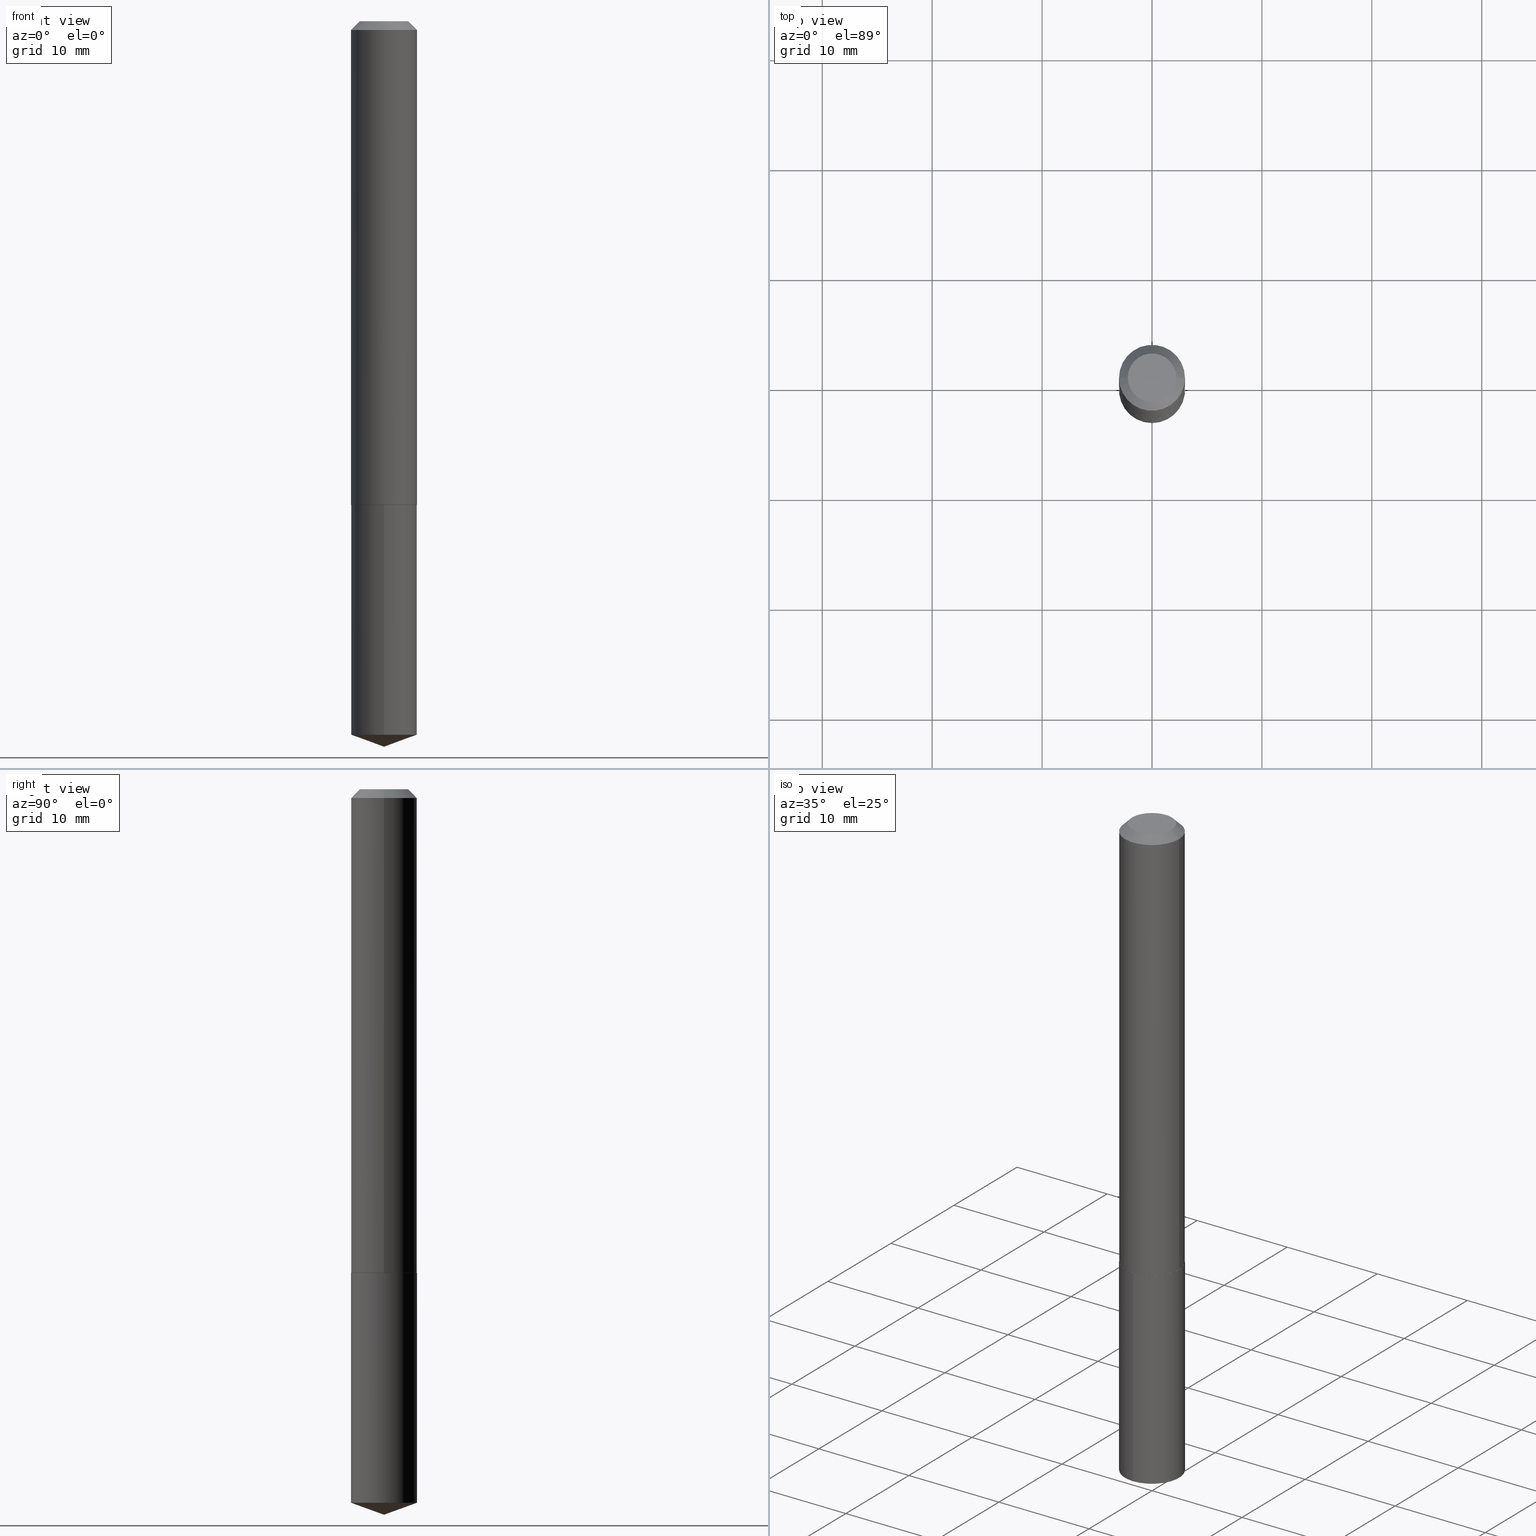
[diagram: canonical four-view strip — front | top / right | iso, engineering-drawing reading convention]
A machine part, canonical four-view strip (front | top / right | iso — engineering-drawing reading convention). The complete STEP part file that produces these views, byte-faithful:
ISO-10303-21;
HEADER;
FILE_DESCRIPTION (( 'STEP AP203' ),
    '1' );
FILE_NAME ('66045.STEP',
    '2024-04-23T12:50:18',
    ( '' ),
    ( '' ),
    'SwSTEP 2.0',
    'SolidWorks 2023',
    '' );
FILE_SCHEMA (( 'CONFIG_CONTROL_DESIGN' ));
ENDSEC;

DATA;
#1 = COORDINATED_UNIVERSAL_TIME_OFFSET ( 5, 0, .BEHIND. ) ;
#2 = CIRCLE ( 'NONE', #282, 0.08684999999999999665 ) ;
#3 = AXIS2_PLACEMENT_3D ( 'NONE', #376, #349, #219 ) ;
#4 = CARTESIAN_POINT ( 'NONE',  ( -0.1176000000000002738, -5.209696490716105911E-15, -1.732199999999999518 ) ) ;
#5 = ADVANCED_FACE ( 'NONE', ( #130 ), #139, .T. ) ;
#6 = AXIS2_PLACEMENT_3D ( 'NONE', #304, #390, #24 ) ;
#7 = DIRECTION ( 'NONE',  ( -2.443006926696286380E-29, 3.495006890392658016E-15, 1.000000000000000000 ) ) ;
#8 = ORIENTED_EDGE ( 'NONE', *, *, #19, .F. ) ;
#9 = ORIENTED_EDGE ( 'NONE', *, *, #385, .T. ) ;
#10 = DIRECTION ( 'NONE',  ( 1.000000000000000000, -6.982962677686267499E-15, 0.000000000000000000 ) ) ;
#11 = PRODUCT_DEFINITION_SHAPE ( 'NONE', 'NONE',  #43 ) ;
#12 = VERTEX_POINT ( 'NONE', #176 ) ;
#13 = LINE ( 'NONE', #228, #77 ) ;
#14 = EDGE_LOOP ( 'NONE', ( #9, #120, #311, #183 ) ) ;
#15 = CARTESIAN_POINT ( 'NONE',  ( 7.642090019328601786E-31, -1.091087918388490144E-16, -0.03125000000000020123 ) ) ;
#16 = FACE_OUTER_BOUND ( 'NONE', #122, .T. ) ;
#17 = CIRCLE ( 'NONE', #243, 0.1180999999999999966 ) ;
#18 = LOCAL_TIME ( 8, 50, 18.00000000000000000, #1 ) ;
#19 = EDGE_CURVE ( 'NONE', #129, #320, #307, .T. ) ;
#20 = DIRECTION ( 'NONE',  ( 2.445468806185136597E-29, -3.491481338843145583E-15, -1.000000000000000000 ) ) ;
#21 = CARTESIAN_POINT ( 'NONE',  ( 4.234818331670800246E-29, -6.046198234474674485E-15, -1.731699999999999795 ) ) ;
#22 = CYLINDRICAL_SURFACE ( 'NONE', #3, 0.1181000000000001077 ) ;
#23 = VECTOR ( 'NONE', #343, 39.37007874015748143 ) ;
#24 = DIRECTION ( 'NONE',  ( 1.000000000000000000, -6.982962677686267499E-15, 0.000000000000000000 ) ) ;
#25 = AXIS2_PLACEMENT_3D ( 'NONE', #142, #236, #79 ) ;
#26 = MANIFOLD_SOLID_BREP ( 'Body-Move/Copy2[1]', #53 ) ;
#27 = PERSON_AND_ORGANIZATION ( #281, #263 ) ;
#28 = ADVANCED_FACE ( 'NONE', ( #340 ), #273, .T. ) ;
#29 = AXIS2_PLACEMENT_3D ( 'NONE', #305, #7, #118 ) ;
#30 = DATE_AND_TIME ( #245, #145 ) ;
#31 = CARTESIAN_POINT ( 'NONE',  ( 6.347909198327629019E-29, -9.081425903996282257E-15, -2.598399999999999821 ) ) ;
#32 = CC_DESIGN_PERSON_AND_ORGANIZATION_ASSIGNMENT ( #60, #369, ( #140 ) ) ;
#33 = APPROVAL_STATUS ( 'not_yet_approved' ) ;
#34 = ORIENTED_EDGE ( 'NONE', *, *, #239, .F. ) ;
#35 = SHAPE_DEFINITION_REPRESENTATION ( #11, #205 ) ;
#36 = DIRECTION ( 'NONE',  ( -0.7071067811865454633, 2.468850131082235367E-15, -0.7071067811865495711 ) ) ;
#37 = DIRECTION ( 'NONE',  ( -2.443006926696286380E-29, 3.495006890392658410E-15, 1.000000000000000000 ) ) ;
#38 = FACE_OUTER_BOUND ( 'NONE', #127, .T. ) ;
#39 = VERTEX_POINT ( 'NONE', #180 ) ;
#40 = DIRECTION ( 'NONE',  ( -2.443006926696286380E-29, 3.495006890392658016E-15, 1.000000000000000000 ) ) ;
#41 = CARTESIAN_POINT ( 'NONE',  ( 0.1180999999999999966, -9.193336053756670343E-16, -0.03125000000000020123 ) ) ;
#42 = ORIENTED_EDGE ( 'NONE', *, *, #204, .T. ) ;
#43 = PRODUCT_DEFINITION ( 'UNKNOWN', '', #140, #217 ) ;
#44 = DIRECTION ( 'NONE',  ( -6.982962677686265922E-15, -1.000000000000000000, 4.626330217890369336E-15 ) ) ;
#45 = VERTEX_POINT ( 'NONE', #31 ) ;
#46 = ORIENTED_EDGE ( 'NONE', *, *, #57, .F. ) ;
#47 = DIRECTION ( 'NONE',  ( -6.982962677686265922E-15, -1.000000000000000000, 4.626330217890369336E-15 ) ) ;
#48 = CARTESIAN_POINT ( 'NONE',  ( 6.356512922323793601E-29, -9.069211983208151502E-15, -2.598399999999999821 ) ) ;
#49 = AXIS2_PLACEMENT_3D ( 'NONE', #155, #319, #10 ) ;
#50 = DIRECTION ( 'NONE',  ( -6.982962677686265922E-15, -1.000000000000000000, 4.626330217890369336E-15 ) ) ;
#51 = DIRECTION ( 'NONE',  ( -2.445468806185136597E-29, 3.491481338843145583E-15, 1.000000000000000000 ) ) ;
#52 = APPROVAL_STATUS ( 'not_yet_approved' ) ;
#53 = CLOSED_SHELL ( 'NONE', ( #253, #56, #166, #28, #247 ) ) ;
#54 = DIRECTION ( 'NONE',  ( -2.445468806185136597E-29, 3.491481338843145583E-15, 1.000000000000000000 ) ) ;
#55 = APPROVAL_ROLE ( '' ) ;
#56 = ADVANCED_FACE ( 'NONE', ( #248 ), #261, .T. ) ;
#57 = EDGE_CURVE ( 'NONE', #39, #12, #64, .T. ) ;
#58 = DATE_TIME_ROLE ( 'creation_date' ) ;
#59 = AXIS2_PLACEMENT_3D ( 'NONE', #383, #40, #321 ) ;
#60 = PERSON_AND_ORGANIZATION ( #281, #263 ) ;
#61 = APPROVAL_ROLE ( '' ) ;
#62 = ADVANCED_FACE ( 'NONE', ( #38 ), #213, .T. ) ;
#63 = LINE ( 'NONE', #41, #23 ) ;
#64 = CIRCLE ( 'NONE', #267, 0.1181000000000002187 ) ;
#65 = EDGE_CURVE ( 'NONE', #87, #12, #249, .T. ) ;
#66 = EDGE_LOOP ( 'NONE', ( #119, #347, #34, #312 ) ) ;
#67 = EDGE_LOOP ( 'NONE', ( #8, #94, #212, #258 ) ) ;
#68 = DIRECTION ( 'NONE',  ( -2.443006926696286380E-29, 3.495006890392658016E-15, 1.000000000000000000 ) ) ;
#69 = VECTOR ( 'NONE', #36, 39.37007874015748143 ) ;
#70 = AXIS2_PLACEMENT_3D ( 'NONE', #199, #54, #170 ) ;
#71 = ORIENTED_EDGE ( 'NONE', *, *, #231, .T. ) ;
#72 = LINE ( 'NONE', #117, #99 ) ;
#73 = DIRECTION ( 'NONE',  ( -2.443006926696286380E-29, 3.495006890392658016E-15, 1.000000000000000000 ) ) ;
#74 = ORIENTED_EDGE ( 'NONE', *, *, #175, .T. ) ;
#75 = DIRECTION ( 'NONE',  ( -2.445468806185136597E-29, 3.491481338843145583E-15, 1.000000000000000000 ) ) ;
#76 = DIRECTION ( 'NONE',  ( 1.000000000000000000, -6.982962677686267499E-15, 0.000000000000000000 ) ) ;
#77 = VECTOR ( 'NONE', #288, 39.37007874015748143 ) ;
#78 = PLANE ( 'NONE',  #316 ) ;
#79 = DIRECTION ( 'NONE',  ( 1.000000000000000000, 0.000000000000000000, 0.000000000000000000 ) ) ;
#80 = CLOSED_SHELL ( 'NONE', ( #5, #337, #327, #109, #62, #278, #279, #301 ) ) ;
#81 = APPROVAL_DATE_TIME ( #388, #208 ) ;
#82 = CC_DESIGN_APPROVAL ( #366, ( #140 ) ) ;
#83 = CARTESIAN_POINT ( 'NONE',  ( 0.1180999999999999966, -9.337966840735971660E-16, -0.03125000000000020123 ) ) ;
#84 = CALENDAR_DATE ( 2024, 23, 4 ) ;
#85 = VECTOR ( 'NONE', #138, 39.37007874015748143 ) ;
#86 = CONICAL_SURFACE ( 'NONE', #201, 0.1180999999999999966, 0.7853981633974453924 ) ;
#87 = VERTEX_POINT ( 'NONE', #308 ) ;
#88 = AXIS2_PLACEMENT_3D ( 'NONE', #15, #259, #344 ) ;
#89 = EDGE_CURVE ( 'NONE', #379, #374, #169, .T. ) ;
#90 = ORIENTED_EDGE ( 'NONE', *, *, #57, .T. ) ;
#91 = ORIENTED_EDGE ( 'NONE', *, *, #121, .T. ) ;
#92 = DIRECTION ( 'NONE',  ( -2.438088387897960049E-29, 3.491481338843145188E-15, 1.000000000000000000 ) ) ;
#93 = CARTESIAN_POINT ( 'NONE',  ( 0.1181000000000002187, -6.870886126709424325E-15, -1.731699999999999795 ) ) ;
#94 = ORIENTED_EDGE ( 'NONE', *, *, #332, .T. ) ;
#95 = CARTESIAN_POINT ( 'NONE',  ( 4.236041066073892487E-29, -6.047943975144095988E-15, -1.732199999999999518 ) ) ;
#96 = DIRECTION ( 'NONE',  ( 0.7071067811865837660, -2.468850131082636503E-15, 0.7071067811865112684 ) ) ;
#97 = ORIENTED_EDGE ( 'NONE', *, *, #136, .F. ) ;
#98 = DIRECTION ( 'NONE',  ( 2.438088387897960049E-29, -3.491481338843145188E-15, -1.000000000000000000 ) ) ;
#99 = VECTOR ( 'NONE', #188, 39.37007874015748143 ) ;
#100 = AXIS2_PLACEMENT_3D ( 'NONE', #195, #324, #50 ) ;
#101 = ORIENTED_EDGE ( 'NONE', *, *, #211, .F. ) ;
#102 = ORIENTED_EDGE ( 'NONE', *, *, #108, .F. ) ;
#103 = VERTEX_POINT ( 'NONE', #354 ) ;
#104 = CYLINDRICAL_SURFACE ( 'NONE', #132, 0.1181000000000001077 ) ;
#105 = CARTESIAN_POINT ( 'NONE',  ( 6.247161294993890349E-29, -8.925086475508884590E-15, -2.555415115333162124 ) ) ;
#106 = FACE_OUTER_BOUND ( 'NONE', #125, .T. ) ;
#107 = CARTESIAN_POINT ( 'NONE',  ( 4.236041066073892487E-29, -6.047943975144095988E-15, -1.732199999999999518 ) ) ;
#108 = EDGE_CURVE ( 'NONE', #45, #129, #384, .T. ) ;
#109 = ADVANCED_FACE ( 'NONE', ( #106 ), #230, .F. ) ;
#110 = APPROVAL_DATE_TIME ( #137, #366 ) ;
#111 = CC_DESIGN_PERSON_AND_ORGANIZATION_ASSIGNMENT ( #277, #339, ( #133 ) ) ;
#112 = DIRECTION ( 'NONE',  ( -2.445468806185136877E-29, 3.491481338843145188E-15, 1.000000000000000000 ) ) ;
#113 = AXIS2_PLACEMENT_3D ( 'NONE', #246, #365, #210 ) ;
#114 = LENGTH_MEASURE_WITH_UNIT ( LENGTH_MEASURE( 0.02539999999999999897 ), #295 );
#115 = APPROVAL_ROLE ( '' ) ;
#116 = AXIS2_PLACEMENT_3D ( 'NONE', #291, #192, #229 ) ;
#117 = CARTESIAN_POINT ( 'NONE',  ( -8.246878922347056641E-16, -0.1181000000000060474, -1.732199999999999074 ) ) ;
#118 = DIRECTION ( 'NONE',  ( -6.982962677686265922E-15, -1.000000000000000000, 4.626330217890369336E-15 ) ) ;
#119 = ORIENTED_EDGE ( 'NONE', *, *, #211, .T. ) ;
#120 = ORIENTED_EDGE ( 'NONE', *, *, #356, .T. ) ;
#121 = EDGE_CURVE ( 'NONE', #372, #379, #63, .T. ) ;
#122 = EDGE_LOOP ( 'NONE', ( #283, #90, #74, #342 ) ) ;
#123 = CC_DESIGN_APPROVAL ( #298, ( #133 ) ) ;
#124 = ORIENTED_EDGE ( 'NONE', *, *, #371, .T. ) ;
#125 = EDGE_LOOP ( 'NONE', ( #352, #341 ) ) ;
#126 = ORIENTED_EDGE ( 'NONE', *, *, #204, .F. ) ;
#127 = EDGE_LOOP ( 'NONE', ( #97, #160, #191, #46 ) ) ;
#128 = CARTESIAN_POINT ( 'NONE',  ( 0.000000000000000000, 0.000000000000000000, 0.000000000000000000 ) ) ;
#129 = VERTEX_POINT ( 'NONE', #350 ) ;
#130 = FACE_OUTER_BOUND ( 'NONE', #218, .T. ) ;
#131 = CYLINDRICAL_SURFACE ( 'NONE', #59, 0.1180999999999999966 ) ;
#132 = AXIS2_PLACEMENT_3D ( 'NONE', #128, #161, #135 ) ;
#133 = SECURITY_CLASSIFICATION ( '', '', #336 ) ;
#134 = CARTESIAN_POINT ( 'NONE',  ( 1.768450389859457174E-46, -2.524878468802162243E-32, -7.231539348965118234E-18 ) ) ;
#135 = DIRECTION ( 'NONE',  ( 1.000000000000000000, -6.982962677686266711E-15, 4.876176775795935793E-29 ) ) ;
#136 = EDGE_CURVE ( 'NONE', #368, #39, #375, .T. ) ;
#137 = DATE_AND_TIME ( #299, #18 ) ;
#138 = DIRECTION ( 'NONE',  ( -2.445468806185136877E-29, 3.491481338843145188E-15, 1.000000000000000000 ) ) ;
#139 = CONICAL_SURFACE ( 'NONE', #88, 0.1180999999999999966, 0.7853981633974453924 ) ;
#140 = PRODUCT_DEFINITION_FORMATION_WITH_SPECIFIED_SOURCE ( 'ANY', '', #284, .NOT_KNOWN. ) ;
#141 =( CONVERSION_BASED_UNIT ( 'INCH', #114 ) LENGTH_UNIT ( ) NAMED_UNIT ( #318 ) );
#142 = CARTESIAN_POINT ( 'NONE',  ( 0.000000000000000000, 0.000000000000000000, 0.000000000000000000 ) ) ;
#143 = PERSON_AND_ORGANIZATION ( #281, #263 ) ;
#144 = AXIS2_PLACEMENT_3D ( 'NONE', #153, #92, #216 ) ;
#145 = LOCAL_TIME ( 8, 50, 18.00000000000000000, #148 ) ;
#146 = COORDINATED_UNIVERSAL_TIME_OFFSET ( 5, 0, .BEHIND. ) ;
#147 = UNCERTAINTY_MEASURE_WITH_UNIT (LENGTH_MEASURE( 1.000000000000000082E-05 ), #141, 'distance_accuracy_value', 'NONE');
#148 = COORDINATED_UNIVERSAL_TIME_OFFSET ( 5, 0, .BEHIND. ) ;
#149 = DATE_TIME_ROLE ( 'classification_date' ) ;
#150 = VECTOR ( 'NONE', #96, 39.37007874015748143 ) ;
#151 = DIRECTION ( 'NONE',  ( 1.000000000000000000, -6.982962677686267499E-15, 0.000000000000000000 ) ) ;
#152 = CIRCLE ( 'NONE', #116, 0.1180999999999999966 ) ;
#153 = CARTESIAN_POINT ( 'NONE',  ( 4.236041066073892487E-29, -6.047943975144095988E-15, -1.732199999999999518 ) ) ;
#154 = ORIENTED_EDGE ( 'NONE', *, *, #269, .F. ) ;
#155 = CARTESIAN_POINT ( 'NONE',  ( 4.234818331670800246E-29, -6.046198234474674485E-15, -1.731699999999999795 ) ) ;
#156 = EDGE_LOOP ( 'NONE', ( #250, #71 ) ) ;
#157 = ORIENTED_EDGE ( 'NONE', *, *, #108, .T. ) ;
#158 = DIRECTION ( 'NONE',  ( 1.000000000000000000, -6.982962677686266711E-15, 4.875959881687004012E-29 ) ) ;
#159 = EDGE_LOOP ( 'NONE', ( #378, #182 ) ) ;
#160 = ORIENTED_EDGE ( 'NONE', *, *, #194, .T. ) ;
#161 = DIRECTION ( 'NONE',  ( -2.445468806185136597E-29, 3.491481338843145583E-15, 1.000000000000000000 ) ) ;
#162 = DIRECTION ( 'NONE',  ( 6.982962677686265922E-15, 1.000000000000000000, -3.495006890392658410E-15 ) ) ;
#163 = CIRCLE ( 'NONE', #70, 0.1176000000000002738 ) ;
#164 = EDGE_CURVE ( 'NONE', #103, #274, #72, .T. ) ;
#165 = DIRECTION ( 'NONE',  ( 1.000000000000000000, -6.982962677686269077E-15, 0.000000000000000000 ) ) ;
#166 = ADVANCED_FACE ( 'NONE', ( #382 ), #302, .T. ) ;
#167 = FACE_OUTER_BOUND ( 'NONE', #14, .T. ) ;
#168 = PRODUCT_RELATED_PRODUCT_CATEGORY ( 'detail', '', ( #284 ) ) ;
#169 = CIRCLE ( 'NONE', #113, 0.1180999999999999966 ) ;
#170 = DIRECTION ( 'NONE',  ( 1.000000000000000000, -6.982962677686269077E-15, 0.000000000000000000 ) ) ;
#171 = COORDINATED_UNIVERSAL_TIME_OFFSET ( 5, 0, .BEHIND. ) ;
#172 = PERSON_AND_ORGANIZATION ( #281, #263 ) ;
#173 = AXIS2_PLACEMENT_3D ( 'NONE', #105, #323, #47 ) ;
#174 = PERSON_AND_ORGANIZATION ( #281, #263 ) ;
#175 = EDGE_CURVE ( 'NONE', #12, #379, #329, .T. ) ;
#176 = CARTESIAN_POINT ( 'NONE',  ( 0.1181000000000002187, -6.870886126709424325E-15, -1.731699999999999795 ) ) ;
#177 = APPROVAL_DATE_TIME ( #271, #298 ) ;
#178 = CIRCLE ( 'NONE', #185, 0.1180999999999999966 ) ;
#179 = CIRCLE ( 'NONE', #6, 0.1181000000000002187 ) ;
#180 = CARTESIAN_POINT ( 'NONE',  ( -0.1181000000000002187, -5.207047263541994710E-15, -1.731699999999999795 ) ) ;
#181 = COORDINATED_UNIVERSAL_TIME_OFFSET ( 5, 0, .BEHIND. ) ;
#182 = ORIENTED_EDGE ( 'NONE', *, *, #290, .T. ) ;
#183 = ORIENTED_EDGE ( 'NONE', *, *, #175, .F. ) ;
#184 = CARTESIAN_POINT ( 'NONE',  ( 3.536900779718914348E-46, -5.049756937604324485E-32, -1.446307869793023647E-17 ) ) ;
#185 = AXIS2_PLACEMENT_3D ( 'NONE', #262, #68, #44 ) ;
#186 = CC_DESIGN_SECURITY_CLASSIFICATION ( #133, ( #140 ) ) ;
#187 = ORIENTED_EDGE ( 'NONE', *, *, #89, .T. ) ;
#188 = DIRECTION ( 'NONE',  ( -2.443006926696286380E-29, 3.495006890392658410E-15, 1.000000000000000000 ) ) ;
#189 = PLANE ( 'NONE',  #387 ) ;
#190 = ORIENTED_EDGE ( 'NONE', *, *, #290, .F. ) ;
#191 = ORIENTED_EDGE ( 'NONE', *, *, #65, .T. ) ;
#192 = DIRECTION ( 'NONE',  ( -2.445468806185136597E-29, 3.491481338843145583E-15, 1.000000000000000000 ) ) ;
#193 = EDGE_CURVE ( 'NONE', #221, #374, #326, .T. ) ;
#194 = EDGE_CURVE ( 'NONE', #368, #87, #251, .T. ) ;
#195 = CARTESIAN_POINT ( 'NONE',  ( 6.247161294993890349E-29, -8.925086475508884590E-15, -2.555415115333162124 ) ) ;
#196 = LOCAL_TIME ( 8, 50, 18.00000000000000000, #181 ) ;
#197 = DIRECTION ( 'NONE',  ( -6.982962677686265922E-15, -1.000000000000000000, 4.626330217890369336E-15 ) ) ;
#198 = PERSON_AND_ORGANIZATION_ROLE ( 'creator' ) ;
#199 = CARTESIAN_POINT ( 'NONE',  ( 4.236041066073892487E-29, -6.047943975144095988E-15, -1.732199999999999518 ) ) ;
#200 = CIRCLE ( 'NONE', #173, 0.1180999999999999966 ) ;
#201 = AXIS2_PLACEMENT_3D ( 'NONE', #255, #20, #357 ) ;
#202 = PERSON_AND_ORGANIZATION_ROLE ( 'creator' ) ;
#203 = APPLICATION_PROTOCOL_DEFINITION ( 'international standard', 'config_control_design', 1994, #256 ) ;
#204 = EDGE_CURVE ( 'NONE', #45, #103, #13, .T. ) ;
#205 = ADVANCED_BREP_SHAPE_REPRESENTATION ( '66045', ( #26, #294, #25 ), #348 ) ;
#206 = AXIS2_PLACEMENT_3D ( 'NONE', #235, #335, #207 ) ;
#207 = DIRECTION ( 'NONE',  ( -6.982962677686265922E-15, -1.000000000000000000, 3.475157955500679982E-15 ) ) ;
#208 = APPROVAL ( #361, 'UNSPECIFIED' ) ;
#209 = CARTESIAN_POINT ( 'NONE',  ( 4.234818331670800246E-29, -6.046198234474674485E-15, -1.731699999999999795 ) ) ;
#210 = DIRECTION ( 'NONE',  ( 1.000000000000000000, -6.982962677686266711E-15, 0.000000000000000000 ) ) ;
#211 = EDGE_CURVE ( 'NONE', #103, #129, #200, .T. ) ;
#212 = ORIENTED_EDGE ( 'NONE', *, *, #164, .T. ) ;
#213 = CONICAL_SURFACE ( 'NONE', #49, 0.1181000000000002187, 0.7853981633974995713 ) ;
#214 = APPROVAL_PERSON_ORGANIZATION ( #143, #208, #115 ) ;
#215 = DIRECTION ( 'NONE',  ( -6.982962677686265922E-15, -1.000000000000000000, 3.475157955500679982E-15 ) ) ;
#216 = DIRECTION ( 'NONE',  ( 1.000000000000000000, -6.982962677686265922E-15, 4.876176775795935793E-29 ) ) ;
#217 = DESIGN_CONTEXT ( 'detailed design', #256, 'design' ) ;
#218 = EDGE_LOOP ( 'NONE', ( #190, #91, #187, #338 ) ) ;
#219 = DIRECTION ( 'NONE',  ( 1.000000000000000000, -6.982962677686266711E-15, 4.876176775795935793E-29 ) ) ;
#220 = DIRECTION ( 'NONE',  ( 6.676917655467978384E-15, 0.9396926207859110924, 0.3420201433256611079 ) ) ;
#221 = VERTEX_POINT ( 'NONE', #287 ) ;
#222 = DIRECTION ( 'NONE',  ( -1.000000000000000000, 6.982962677686265922E-15, -4.876176775795935793E-29 ) ) ;
#223 = VECTOR ( 'NONE', #315, 39.37007874015748143 ) ;
#224 = APPROVAL_PERSON_ORGANIZATION ( #275, #298, #61 ) ;
#225 = CC_DESIGN_DATE_AND_TIME_ASSIGNMENT ( #331, #58, ( #43 ) ) ;
#226 = ORIENTED_EDGE ( 'NONE', *, *, #193, .T. ) ;
#227 = ORIENTED_EDGE ( 'NONE', *, *, #385, .F. ) ;
#228 = CARTESIAN_POINT ( 'NONE',  ( 6.347909198327629019E-29, -9.081425903996282257E-15, -2.598399999999999821 ) ) ;
#229 = DIRECTION ( 'NONE',  ( 1.000000000000000000, -6.982962677686266711E-15, 0.000000000000000000 ) ) ;
#230 = PLANE ( 'NONE',  #144 ) ;
#231 = EDGE_CURVE ( 'NONE', #320, #274, #178, .T. ) ;
#232 = DIRECTION ( 'NONE',  ( -2.445468806185136597E-29, 3.491481338843145583E-15, 1.000000000000000000 ) ) ;
#233 = AXIS2_PLACEMENT_3D ( 'NONE', #309, #276, #215 ) ;
#234 = PERSON_AND_ORGANIZATION ( #281, #263 ) ;
#235 = CARTESIAN_POINT ( 'NONE',  ( -8.982920140080471166E-28, 1.285233775285496638E-13, 36.77167874015748339 ) ) ;
#236 = DIRECTION ( 'NONE',  ( 0.000000000000000000, 0.000000000000000000, 1.000000000000000000 ) ) ;
#237 = AXIS2_PLACEMENT_3D ( 'NONE', #21, #51, #76 ) ;
#238 = CARTESIAN_POINT ( 'NONE',  ( -0.1181000000000001077, 8.391509709326790846E-16, -5.809262341591049389E-30 ) ) ;
#239 = EDGE_CURVE ( 'NONE', #274, #320, #17, .T. ) ;
#240 = CALENDAR_DATE ( 2024, 23, 4 ) ;
#241 = APPLICATION_CONTEXT ( 'configuration controlled 3d designs of mechanical parts and assemblies' ) ;
#242 = CC_DESIGN_PERSON_AND_ORGANIZATION_ASSIGNMENT ( #234, #198, ( #140 ) ) ;
#243 = AXIS2_PLACEMENT_3D ( 'NONE', #95, #73, #197 ) ;
#244 = CC_DESIGN_APPROVAL ( #208, ( #43 ) ) ;
#245 = CALENDAR_DATE ( 2024, 23, 4 ) ;
#246 = CARTESIAN_POINT ( 'NONE',  ( 7.642090019328601786E-31, -1.091087918388490144E-16, -0.03125000000000020123 ) ) ;
#247 = ADVANCED_FACE ( 'NONE', ( #292 ), #189, .F. ) ;
#248 = FACE_OUTER_BOUND ( 'NONE', #286, .T. ) ;
#249 = LINE ( 'NONE', #93, #150 ) ;
#250 = ORIENTED_EDGE ( 'NONE', *, *, #239, .T. ) ;
#251 = CIRCLE ( 'NONE', #314, 0.1176000000000002738 ) ;
#252 = DIRECTION ( 'NONE',  ( -2.445468806185136597E-29, 3.491481338843145583E-15, 1.000000000000000000 ) ) ;
#253 = ADVANCED_FACE ( 'NONE', ( #317 ), #131, .T. ) ;
#254 = ORIENTED_EDGE ( 'NONE', *, *, #332, .F. ) ;
#255 = CARTESIAN_POINT ( 'NONE',  ( 7.642090019328601786E-31, -1.091087918388490144E-16, -0.03125000000000020123 ) ) ;
#256 = APPLICATION_CONTEXT ( 'configuration controlled 3d designs of mechanical parts and assemblies' ) ;
#257 = CARTESIAN_POINT ( 'NONE',  ( 3.536900779718914348E-46, -5.049756937604324485E-32, -1.446307869793023647E-17 ) ) ;
#258 = ORIENTED_EDGE ( 'NONE', *, *, #231, .F. ) ;
#259 = DIRECTION ( 'NONE',  ( 2.445468806185136597E-29, -3.491481338843145583E-15, -1.000000000000000000 ) ) ;
#260 = ORIENTED_EDGE ( 'NONE', *, *, #121, .F. ) ;
#261 = CONICAL_SURFACE ( 'NONE', #233, 108.1684023407347155, 1.221730476396035270 ) ;
#262 = CARTESIAN_POINT ( 'NONE',  ( 4.236041066073892487E-29, -6.047943975144095988E-15, -1.732199999999999518 ) ) ;
#263 = ORGANIZATION ( 'UNSPECIFIED', 'UNSPECIFIED', '' ) ;
#264 = DIRECTION ( 'NONE',  ( 1.000000000000000000, -6.982962677686266711E-15, 4.875959881687004012E-29 ) ) ;
#265 = DIRECTION ( 'NONE',  ( -2.445468806185136597E-29, 3.491481338843145583E-15, 1.000000000000000000 ) ) ;
#266 = APPLICATION_PROTOCOL_DEFINITION ( 'international standard', 'config_control_design', 1994, #241 ) ;
#267 = AXIS2_PLACEMENT_3D ( 'NONE', #209, #252, #151 ) ;
#268 = CARTESIAN_POINT ( 'NONE',  ( 0.08684999999999999665, -7.575839282410621061E-16, -1.446307869792546941E-17 ) ) ;
#269 = EDGE_CURVE ( 'NONE', #221, #372, #2, .T. ) ;
#270 = VECTOR ( 'NONE', #112, 39.37007874015748143 ) ;
#271 = DATE_AND_TIME ( #84, #196 ) ;
#272 = ORIENTED_EDGE ( 'NONE', *, *, #310, .T. ) ;
#273 = CYLINDRICAL_SURFACE ( 'NONE', #29, 0.1180999999999999966 ) ;
#274 = VERTEX_POINT ( 'NONE', #285 ) ;
#275 = PERSON_AND_ORGANIZATION ( #281, #263 ) ;
#276 = DIRECTION ( 'NONE',  ( -2.443006926696286380E-29, 3.495006890392658016E-15, 1.000000000000000000 ) ) ;
#277 = PERSON_AND_ORGANIZATION ( #281, #263 ) ;
#278 = ADVANCED_FACE ( 'NONE', ( #16 ), #104, .T. ) ;
#279 = ADVANCED_FACE ( 'NONE', ( #353 ), #86, .T. ) ;
#280 = ORIENTED_EDGE ( 'NONE', *, *, #65, .F. ) ;
#281 = PERSON ( 'UNSPECIFIED', 'UNSPECIFIED', 'UNSPECIFIED', ('UNSPECIFIED'), ('UNSPECIFIED'), ('UNSPECIFIED') ) ;
#282 = AXIS2_PLACEMENT_3D ( 'NONE', #184, #232, #158 ) ;
#283 = ORIENTED_EDGE ( 'NONE', *, *, #356, .F. ) ;
#284 = PRODUCT ( '66045', '66045', '', ( #358 ) ) ;
#285 = CARTESIAN_POINT ( 'NONE',  ( -8.246878922347056641E-16, -0.1181000000000060474, -1.732199999999999074 ) ) ;
#286 = EDGE_LOOP ( 'NONE', ( #126, #157, #101 ) ) ;
#287 = CARTESIAN_POINT ( 'NONE',  ( -0.08684999999999999665, 6.610247044764755977E-16, -1.446307869793467073E-17 ) ) ;
#288 = DIRECTION ( 'NONE',  ( -6.561838499445211896E-15, -0.9396926207859086499, 0.3420201433256677137 ) ) ;
#289 = APPROVAL_PERSON_ORGANIZATION ( #174, #366, #55 ) ;
#290 = EDGE_CURVE ( 'NONE', #372, #221, #330, .T. ) ;
#291 = CARTESIAN_POINT ( 'NONE',  ( 7.642090019328601786E-31, -1.091087918388490144E-16, -0.03125000000000020123 ) ) ;
#292 = FACE_OUTER_BOUND ( 'NONE', #156, .T. ) ;
#293 = CARTESIAN_POINT ( 'NONE',  ( 0.1181000000000001077, -8.246878922347488542E-16, 5.758764772215005345E-30 ) ) ;
#294 = MANIFOLD_SOLID_BREP ( 'Body-Move/Copy2[2]', #80 ) ;
#295 =( LENGTH_UNIT ( ) NAMED_UNIT ( * ) SI_UNIT ( $, .METRE. ) );
#296 = VECTOR ( 'NONE', #220, 39.37007874015748854 ) ;
#297 =( NAMED_UNIT ( * ) PLANE_ANGLE_UNIT ( ) SI_UNIT ( $, .RADIAN. ) );
#298 = APPROVAL ( #33, 'UNSPECIFIED' ) ;
#299 = CALENDAR_DATE ( 2024, 23, 4 ) ;
#300 = PERSON_AND_ORGANIZATION_ROLE ( 'design_owner' ) ;
#301 = ADVANCED_FACE ( 'NONE', ( #377 ), #78, .F. ) ;
#302 = CONICAL_SURFACE ( 'NONE', #206, 108.1684023407347155, 1.221730476396035270 ) ;
#303 = AXIS2_PLACEMENT_3D ( 'NONE', #257, #75, #264 ) ;
#304 = CARTESIAN_POINT ( 'NONE',  ( 4.234818331670800246E-29, -6.046198234474674485E-15, -1.731699999999999795 ) ) ;
#305 = CARTESIAN_POINT ( 'NONE',  ( 4.236041066073892487E-29, -6.047943975144095988E-15, -1.732199999999999518 ) ) ;
#306 = CARTESIAN_POINT ( 'NONE',  ( 8.391509709327204997E-16, 0.1180999999999939598, -1.732200000000000184 ) ) ;
#307 = LINE ( 'NONE', #306, #364 ) ;
#308 = CARTESIAN_POINT ( 'NONE',  ( 0.1176000000000002738, -6.869140386040002822E-15, -1.732199999999999518 ) ) ;
#309 = CARTESIAN_POINT ( 'NONE',  ( -8.982920140080471166E-28, 1.285233775285496638E-13, 36.77167874015748339 ) ) ;
#310 = EDGE_CURVE ( 'NONE', #374, #379, #152, .T. ) ;
#311 = ORIENTED_EDGE ( 'NONE', *, *, #89, .F. ) ;
#312 = ORIENTED_EDGE ( 'NONE', *, *, #164, .F. ) ;
#313 = CC_DESIGN_PERSON_AND_ORGANIZATION_ASSIGNMENT ( #27, #202, ( #43 ) ) ;
#314 = AXIS2_PLACEMENT_3D ( 'NONE', #107, #265, #165 ) ;
#315 = DIRECTION ( 'NONE',  ( -0.7071067811865837660, 7.493145998870485111E-15, 0.7071067811865112684 ) ) ;
#316 = AXIS2_PLACEMENT_3D ( 'NONE', #134, #98, #222 ) ;
#317 = FACE_OUTER_BOUND ( 'NONE', #66, .T. ) ;
#318 = DIMENSIONAL_EXPONENTS ( 1.000000000000000000, 0.000000000000000000, 0.000000000000000000, 0.000000000000000000, 0.000000000000000000, 0.000000000000000000, 0.000000000000000000 ) ;
#319 = DIRECTION ( 'NONE',  ( -2.445468806185136597E-29, 3.491481338843145583E-15, 1.000000000000000000 ) ) ;
#320 = VERTEX_POINT ( 'NONE', #355 ) ;
#321 = DIRECTION ( 'NONE',  ( -6.982962677686265922E-15, -1.000000000000000000, 4.626330217890369336E-15 ) ) ;
#322 = ORIENTED_EDGE ( 'NONE', *, *, #136, .T. ) ;
#323 = DIRECTION ( 'NONE',  ( -2.443006926696286380E-29, 3.495006890392658016E-15, 1.000000000000000000 ) ) ;
#324 = DIRECTION ( 'NONE',  ( -2.443006926696286380E-29, 3.495006890392658016E-15, 1.000000000000000000 ) ) ;
#325 = LOCAL_TIME ( 8, 50, 18.00000000000000000, #146 ) ;
#326 = LINE ( 'NONE', #360, #69 ) ;
#327 = ADVANCED_FACE ( 'NONE', ( #328 ), #362, .T. ) ;
#328 = FACE_OUTER_BOUND ( 'NONE', #373, .T. ) ;
#329 = LINE ( 'NONE', #293, #85 ) ;
#330 = CIRCLE ( 'NONE', #303, 0.08684999999999999665 ) ;
#331 = DATE_AND_TIME ( #363, #370 ) ;
#332 = EDGE_CURVE ( 'NONE', #129, #103, #380, .T. ) ;
#333 = CARTESIAN_POINT ( 'NONE',  ( -0.1180999999999999966, -2.238502542224082018E-15, -0.03125000000000020123 ) ) ;
#334 =( NAMED_UNIT ( * ) SI_UNIT ( $, .STERADIAN. ) SOLID_ANGLE_UNIT ( ) );
#335 = DIRECTION ( 'NONE',  ( -2.443006926696286380E-29, 3.495006890392658016E-15, 1.000000000000000000 ) ) ;
#336 = SECURITY_CLASSIFICATION_LEVEL ( 'unclassified' ) ;
#337 = ADVANCED_FACE ( 'NONE', ( #167 ), #22, .T. ) ;
#338 = ORIENTED_EDGE ( 'NONE', *, *, #193, .F. ) ;
#339 = PERSON_AND_ORGANIZATION_ROLE ( 'classification_officer' ) ;
#340 = FACE_OUTER_BOUND ( 'NONE', #67, .T. ) ;
#341 = ORIENTED_EDGE ( 'NONE', *, *, #194, .F. ) ;
#342 = ORIENTED_EDGE ( 'NONE', *, *, #310, .F. ) ;
#343 = DIRECTION ( 'NONE',  ( 0.7071067811865454633, -7.319954787623248157E-15, -0.7071067811865495711 ) ) ;
#344 = DIRECTION ( 'NONE',  ( -1.000000000000000000, 6.982962677686266711E-15, 0.000000000000000000 ) ) ;
#345 = CARTESIAN_POINT ( 'NONE',  ( -0.1181000000000002187, -5.207047263541994710E-15, -1.731699999999999795 ) ) ;
#346 = LINE ( 'NONE', #238, #270 ) ;
#347 = ORIENTED_EDGE ( 'NONE', *, *, #19, .T. ) ;
#348 =( GEOMETRIC_REPRESENTATION_CONTEXT ( 3 ) GLOBAL_UNCERTAINTY_ASSIGNED_CONTEXT ( ( #147 ) ) GLOBAL_UNIT_ASSIGNED_CONTEXT ( ( #141, #297, #334 ) ) REPRESENTATION_CONTEXT ( 'NONE', 'WORKASPACE' ) );
#349 = DIRECTION ( 'NONE',  ( -2.445468806185136597E-29, 3.491481338843145583E-15, 1.000000000000000000 ) ) ;
#350 = CARTESIAN_POINT ( 'NONE',  ( 8.391509709327407143E-16, 0.1180999999999910871, -2.555415115333162568 ) ) ;
#351 = EDGE_LOOP ( 'NONE', ( #260, #154, #226, #272 ) ) ;
#352 = ORIENTED_EDGE ( 'NONE', *, *, #371, .F. ) ;
#353 = FACE_OUTER_BOUND ( 'NONE', #351, .T. ) ;
#354 = CARTESIAN_POINT ( 'NONE',  ( -8.246878922346857454E-16, -0.1181000000000089339, -2.555415115333161236 ) ) ;
#355 = CARTESIAN_POINT ( 'NONE',  ( 8.391509709327408129E-16, 0.1180999999999939598, -1.732200000000000184 ) ) ;
#356 = EDGE_CURVE ( 'NONE', #39, #374, #346, .T. ) ;
#357 = DIRECTION ( 'NONE',  ( -1.000000000000000000, 6.982962677686266711E-15, 0.000000000000000000 ) ) ;
#358 = MECHANICAL_CONTEXT ( 'NONE', #241, 'mechanical' ) ;
#359 = CC_DESIGN_DATE_AND_TIME_ASSIGNMENT ( #30, #149, ( #133 ) ) ;
#360 = CARTESIAN_POINT ( 'NONE',  ( -0.1180999999999999966, 7.155791003958990633E-16, -0.03125000000000020123 ) ) ;
#361 = APPROVAL_STATUS ( 'not_yet_approved' ) ;
#362 = CONICAL_SURFACE ( 'NONE', #237, 0.1181000000000002187, 0.7853981633974995713 ) ;
#363 = CALENDAR_DATE ( 2024, 23, 4 ) ;
#364 = VECTOR ( 'NONE', #37, 39.37007874015748143 ) ;
#365 = DIRECTION ( 'NONE',  ( -2.445468806185136597E-29, 3.491481338843145583E-15, 1.000000000000000000 ) ) ;
#366 = APPROVAL ( #52, 'UNSPECIFIED' ) ;
#367 = EDGE_LOOP ( 'NONE', ( #102, #42, #254 ) ) ;
#368 = VERTEX_POINT ( 'NONE', #4 ) ;
#369 = PERSON_AND_ORGANIZATION_ROLE ( 'design_supplier' ) ;
#370 = LOCAL_TIME ( 8, 50, 18.00000000000000000, #171 ) ;
#371 = EDGE_CURVE ( 'NONE', #87, #368, #163, .T. ) ;
#372 = VERTEX_POINT ( 'NONE', #268 ) ;
#373 = EDGE_LOOP ( 'NONE', ( #124, #322, #227, #280 ) ) ;
#374 = VERTEX_POINT ( 'NONE', #333 ) ;
#375 = LINE ( 'NONE', #345, #223 ) ;
#376 = CARTESIAN_POINT ( 'NONE',  ( 0.000000000000000000, 0.000000000000000000, 0.000000000000000000 ) ) ;
#377 = FACE_OUTER_BOUND ( 'NONE', #159, .T. ) ;
#378 = ORIENTED_EDGE ( 'NONE', *, *, #269, .T. ) ;
#379 = VERTEX_POINT ( 'NONE', #83 ) ;
#380 = CIRCLE ( 'NONE', #100, 0.1180999999999999966 ) ;
#381 = DIRECTION ( 'NONE',  ( 2.443006926696285539E-29, -3.495006890392658410E-15, -1.000000000000000000 ) ) ;
#382 = FACE_OUTER_BOUND ( 'NONE', #367, .T. ) ;
#383 = CARTESIAN_POINT ( 'NONE',  ( 4.236041066073892487E-29, -6.047943975144095988E-15, -1.732199999999999518 ) ) ;
#384 = LINE ( 'NONE', #48, #296 ) ;
#385 = EDGE_CURVE ( 'NONE', #12, #39, #179, .T. ) ;
#386 = CARTESIAN_POINT ( 'NONE',  ( 4.236041066073892487E-29, -6.047943975144095988E-15, -1.732199999999999518 ) ) ;
#387 = AXIS2_PLACEMENT_3D ( 'NONE', #386, #381, #162 ) ;
#388 = DATE_AND_TIME ( #240, #325 ) ;
#389 = CC_DESIGN_PERSON_AND_ORGANIZATION_ASSIGNMENT ( #172, #300, ( #284 ) ) ;
#390 = DIRECTION ( 'NONE',  ( -2.445468806185136597E-29, 3.491481338843145583E-15, 1.000000000000000000 ) ) ;
ENDSEC;
END-ISO-10303-21;
